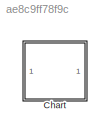
MODEL slx_ae8c9ff78f9c
KIND model
CONFIG AbsTol = auto
CONFIG EnableMultiTasking = off
CONFIG FixedStep = auto
CONFIG MaxStep = auto
CONFIG MinStep = auto
CONFIG RelTol = 1e-3
CONFIG SampleTimeConstraint = Unconstrained
CONFIG Solver = VariableStepAuto
CONFIG SolverName = VariableStepAuto
CONFIG StartTime = 0.0
CONFIG StopTime = 0.4
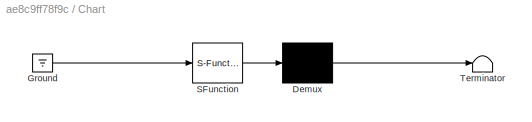
BLOCK [SubSystem] Chart
  ErrorFcn = Stateflow.Translate.translate
  PermitHierarchicalResolution = ExplicitOnly
  Ports = []
  RequestExecContextInheritance = off
  SFBlockType = Chart
  TreatAsAtomicUnit = on
BLOCK [Demux] Chart/ Demux 
  Outputs = 1
  Ports = [1, 1]
BLOCK [Ground] Chart/ Ground 
BLOCK [S-Function] Chart/ SFunction 
  EnableBusSupport = on
  FunctionName = sf_sfun
  PortCounts = [1 1]
  Ports = [1, 1]
  SFcnIsStateOwnerBlock = off
  SFunctionDeploymentMode = off
  Tag = Stateflow S-Function Messages5_2018a 3
BLOCK [Terminator] Chart/ Terminator 
CHART Chart states=6 transitions=5
  STATE_LABEL 'A\nen:\nf("en_A");\nM1.data=4;\nsend(M1);\nM.data=3;\nsend(M);\nM1.data=3;\nsend(M1);\nM1.data=2;\nsend(M1);\n'
  STATE_LABEL 'B\nen:\nf("en_B");\ny=1;'
  STATE_LABEL 'C\nen:f("en_C");\ny=2;'
  STATE_LABEL 'D\nen:f("en_D");'
  STATE_LABEL 'f(s)'
  STATE_LABEL 'SCRIPT:\nfunction f(s)\n  fprintf(s+"\\n");\n'
  STATE_LABEL 'E\nen:f("en_E");'
